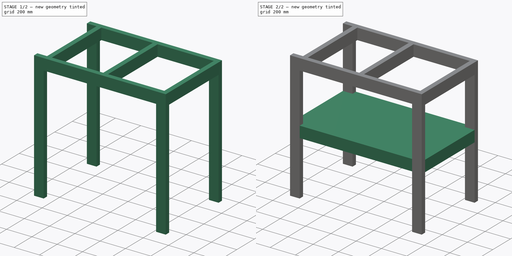
[diagram: build sequence overview — one tinted view per stage of 2, left to right]
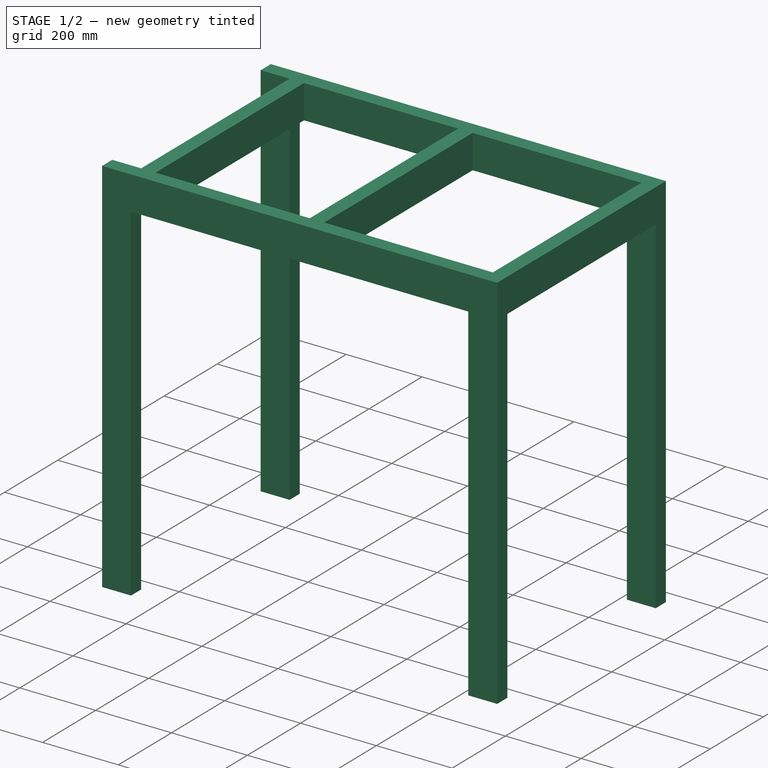
[diagram: stage 1 of 2 — iso view after this stage's code; geometry added in this stage tinted green]
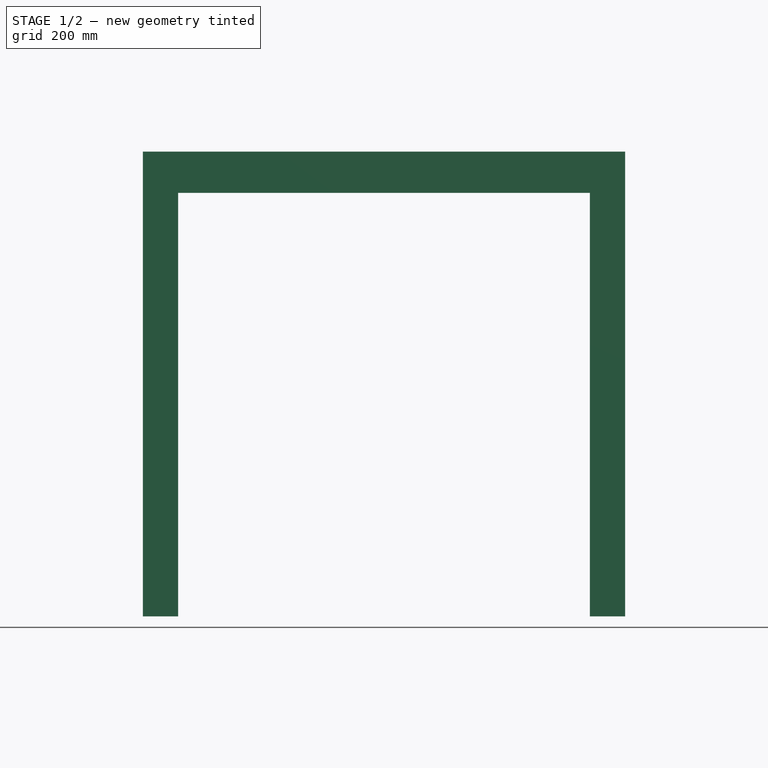
[diagram: stage 1 of 2 — front view after this stage's code; geometry added in this stage tinted green]
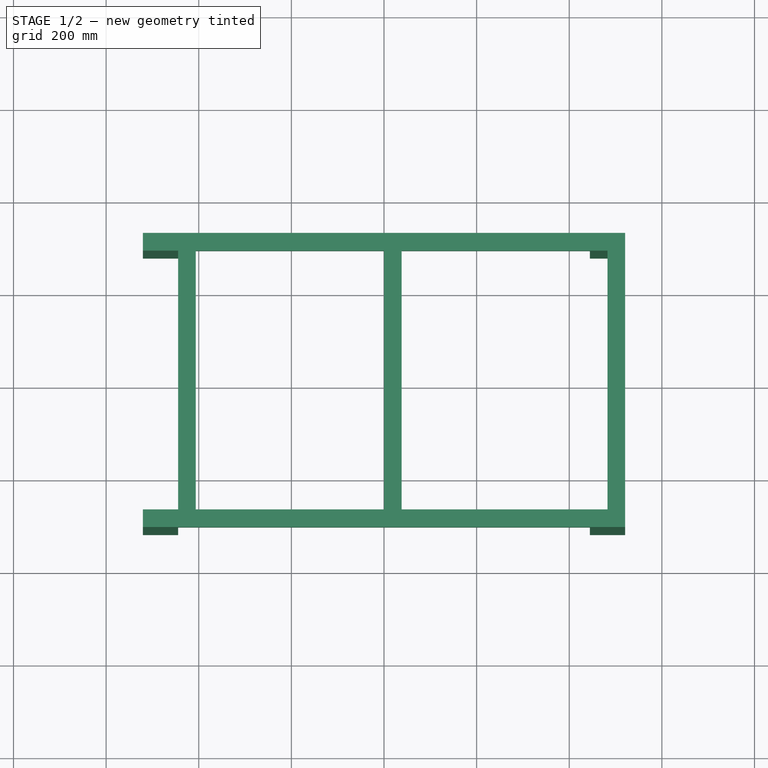
[diagram: stage 1 of 2 — top view after this stage's code; geometry added in this stage tinted green]
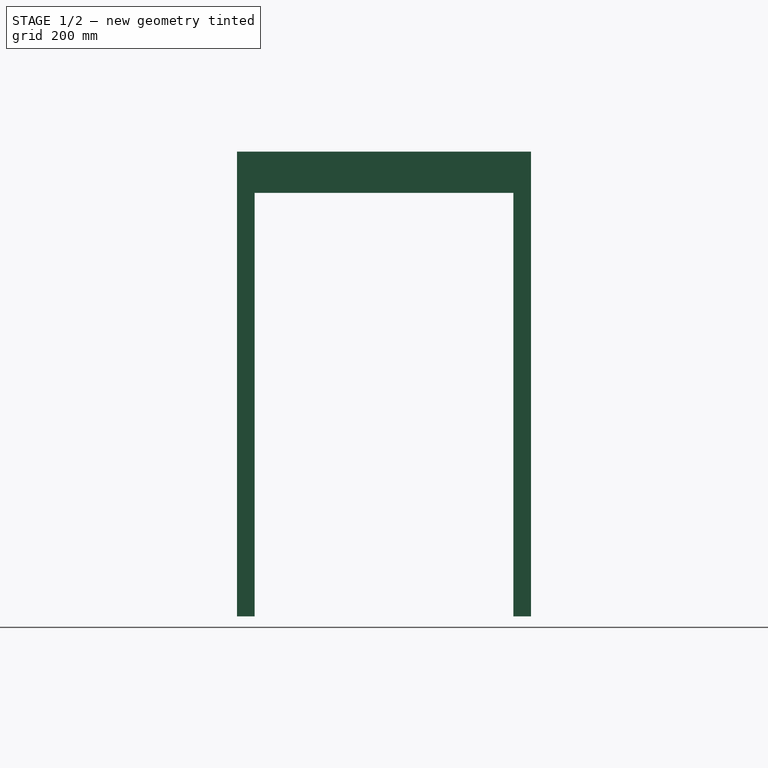
[diagram: stage 1 of 2 — right view after this stage's code; geometry added in this stage tinted green]
FCSTD DOCUMENT  (FreeCAD 1.1R40971 (Git))
Label: base
License: All rights reserved
LicenseURL: http://en.wikipedia.org/wiki/All_rights_reserved
objects: Sketcher::SketchObject×4, PartDesign::Pad×4, App::Point×2, PartDesign::Body×1, App::Part×1
note: 21 computed .brp shape members not serialized (recipe doc carries the construction recipe); baked Part::Feature solids carry a one-line shape summary decoded from their .brp

FEATURE [Sketcher::SketchObject] Sketch  label="base-supportsk"
  ArcFitTolerance = 1e-06
  AttachmentSupport = -> [XY_Plane]
  ExternalTypes = [0]
  FullyConstrained = true
  MakeInternals = false
  MapMode = 5
  sketch-geometry (16):
    g0: LineSegment StartX=-520.7 StartY=317.5 StartZ=0 EndX=-520.7 EndY=279.4 EndZ=0
    g1: LineSegment StartX=-520.7 StartY=279.4 StartZ=0 EndX=-444.5 EndY=279.4 EndZ=0
    g2: LineSegment StartX=520.7 StartY=317.5 StartZ=0 EndX=-520.7 EndY=317.5 EndZ=0
    g3: LineSegment StartX=-520.7 StartY=-317.5 StartZ=0 EndX=-520.7 EndY=-279.4 EndZ=0
    g4: LineSegment StartX=-520.7 StartY=-279.4 StartZ=0 EndX=-444.5 EndY=-279.4 EndZ=0
    g5: LineSegment StartX=520.7 StartY=317.5 StartZ=0 EndX=520.7 EndY=-317.5 EndZ=0
    g6: LineSegment StartX=520.7 StartY=-317.5 StartZ=0 EndX=-520.7 EndY=-317.5 EndZ=0
    g7: LineSegment StartX=-444.5 StartY=279.4 StartZ=0 EndX=-444.5 EndY=-279.4 EndZ=0
    g8: LineSegment StartX=-406.4 StartY=-279.4 StartZ=0 EndX=-406.4 EndY=279.4 EndZ=0
    g9: LineSegment StartX=482.6 StartY=279.4 StartZ=0 EndX=482.6 EndY=-279.4 EndZ=0
    g10: LineSegment StartX=-406.4 StartY=279.4 StartZ=0 EndX=0 EndY=279.4 EndZ=0
    g11: LineSegment StartX=-406.4 StartY=-279.4 StartZ=0 EndX=0 EndY=-279.4 EndZ=0
    g12: LineSegment StartX=2e-15 StartY=279.4 StartZ=0 EndX=2e-15 EndY=-279.4 EndZ=0
    g13: LineSegment StartX=38.1 StartY=279.4 StartZ=0 EndX=38.1 EndY=-279.4 EndZ=0
    g14: LineSegment StartX=38.1 StartY=-279.4 StartZ=0 EndX=482.6 EndY=-279.4 EndZ=0
    g15: LineSegment StartX=38.1 StartY=279.4 StartZ=0 EndX=482.6 EndY=279.4 EndZ=0
  constraints (47):
    c: Coincident(g0,g1)
    c: Coincident(g2,g0)
    c: Vertical(g0)
    c: Horizontal(g1)
    c: Horizontal(g2)
    c: Coincident(g3,g4)
    c: Coincident(g5,g6)
    c: Coincident(g6,g3)
    c: Vertical(g3)
    c: Vertical(g5)
    c: Horizontal(g4)
    c: Horizontal(g6)
    c: Vertical(g7)
    c: Vertical(g8)
    c: Vertical(g9)
    c: DistanceX(g4,g5) = 1041.4
    c: DistanceY(g3,g0) = 635
    c: Symmetric(g5,g0,g-1)
    c: DistanceX(g0,g7) = 76.2
    c: DistanceY(g8,g8) = 558.8
    c: PointOnObject(g10,g8)
    c: Coincident(g14,g9)
    c: Coincident(g9,g15)
    c: Coincident(g8,g11)
    c: PointOnObject(g8,g1)
    c: PointOnObject(g8,g4)
    c: Coincident(g5,g2)
    c: Coincident(g7,g4)
    c: Coincident(g1,g7)
    c: Equal(g0,g3)
    c: DistanceY(g0,g0) = 38.1
    c: DistanceX(g1,g8) = 38.1
    c: DistanceX(g9,g2) = 38.1
    c: Vertical(g3,g0)
    c: Vertical(g12)
    c: Symmetric(g10,g15,g13)
    c: Symmetric(g11,g14,g13)
    c: Horizontal(g11)
    c: Horizontal(g14)
    c: Coincident(g12,g11)
    c: Coincident(g14,g13)
    c: PointOnObject(g8,g10)
    c: Horizontal(g10)
    c: Horizontal(g15)
    c: Coincident(g12,g10)
    c: Coincident(g15,g13)
    c: DistanceX(g10,g13) = 38.1
FEATURE [PartDesign::Pad] Pad  label="top"
  Direction = (0,0,1)
  Length = 88.9
  Length2 = 10
  Profile = -> Sketch
  ReferenceAxis = -> Sketch [N_Axis]
  Suppressed = false
  Type = 0
FEATURE [App::Point] Origin002  label="Origin"
  Role = Origin
FEATURE [App::Point] Origin003  label="Origin"
  Role = Origin
FEATURE [Sketcher::SketchObject] Sketch001  label="shelf-support-sk"
  ArcFitTolerance = 1e-06
  ExternalTypes = [0,0,0,0]
  FullyConstrained = true
  MakeInternals = false
  Placement = pos=(0,0,-406.4) rot=(0,0,1;0rad)
  sketch-geometry (20):
    g0: LineSegment StartX=-444.5 StartY=279.4 StartZ=0 EndX=-19.05 EndY=279.4 EndZ=0
    g1: LineSegment StartX=444.5 StartY=279.4 StartZ=0 EndX=444.5 EndY=317.5 EndZ=0
    g2: LineSegment StartX=444.5 StartY=317.5 StartZ=0 EndX=-444.5 EndY=317.5 EndZ=0
    g3: LineSegment StartX=-444.5 StartY=317.5 StartZ=0 EndX=-444.5 EndY=279.4 EndZ=0
    g4: LineSegment StartX=-444.5 StartY=-279.4 StartZ=0 EndX=-444.5 EndY=-317.5 EndZ=0
    g5: LineSegment StartX=-444.5 StartY=-317.5 StartZ=0 EndX=444.5 EndY=-317.5 EndZ=0
    g6: LineSegment StartX=444.5 StartY=-317.5 StartZ=0 EndX=444.5 EndY=-279.4 EndZ=0
    g7: LineSegment StartX=444.5 StartY=-279.4 StartZ=0 EndX=19.05 EndY=-279.4 EndZ=0
    g8: LineSegment StartX=-19.05 StartY=279.4 StartZ=0 EndX=-19.05 EndY=-279.4 EndZ=0
    g9: LineSegment StartX=19.05 StartY=-279.4 StartZ=0 EndX=19.05 EndY=279.4 EndZ=0
    g10: LineSegment StartX=19.05 StartY=279.4 StartZ=0 EndX=444.5 EndY=279.4 EndZ=0
    g11: LineSegment StartX=-19.05 StartY=-279.4 StartZ=0 EndX=-444.5 EndY=-279.4 EndZ=0
    g12: LineSegment StartX=-482.6 StartY=279.4 StartZ=0 EndX=-520.7 EndY=279.4 EndZ=0
    g13: LineSegment StartX=-520.7 StartY=279.4 StartZ=0 EndX=-520.7 EndY=-279.4 EndZ=0
    g14: LineSegment StartX=-520.7 StartY=-279.4 StartZ=0 EndX=-482.6 EndY=-279.4 EndZ=0
    g15: LineSegment StartX=-482.6 StartY=-279.4 StartZ=0 EndX=-482.6 EndY=279.4 EndZ=0
    g16: LineSegment StartX=482.6 StartY=279.4 StartZ=0 EndX=482.6 EndY=-279.4 EndZ=0
    g17: LineSegment StartX=482.6 StartY=-279.4 StartZ=0 EndX=520.7 EndY=-279.4 EndZ=0
    g18: LineSegment StartX=520.7 StartY=-279.4 StartZ=0 EndX=520.7 EndY=279.4 EndZ=0
    g19: LineSegment StartX=520.7 StartY=279.4 StartZ=0 EndX=482.6 EndY=279.4 EndZ=0
  constraints (58):
    c: Coincident(g10,g1)
    c: Coincident(g1,g2)
    c: Coincident(g2,g3)
    c: Coincident(g3,g0)
    c: Vertical(g1)
    c: Vertical(g3)
    c: DistanceY(g1,g1) = 38.1
    c: Coincident(g4,g5)
    c: Coincident(g5,g6)
    c: Coincident(g6,g7)
    c: Coincident(g11,g4)
    c: Vertical(g4)
    c: Vertical(g6)
    c: Horizontal(g5)
    c: Vertical(g8)
    c: Symmetric(g9,g8,g-2)
    c: Horizontal(g9,g10)
    c: Horizontal(g9,g6)
    c: DistanceX(g8,g9) = 38.1
    c: Equal(g1,g6)
    c: Symmetric(g9,g9,g-1)
    c: Symmetric(g2,g1,g-2)
    c: PointOnObject(g4,g3)
    c: PointOnObject(g6,g1)
    c: DistanceY(g4,g2) = 635
    c: Horizontal(g0)
    c: Coincident(g0,g8)
    c: Coincident(g10,g9)
    c: Horizontal(g11)
    c: Coincident(g7,g9)
    c: Coincident(g11,g8)
    c: Equal(g4,g1)
    c: Coincident(g12,g13)
    c: Coincident(g13,g14)
    c: Coincident(g14,g15)
    c: Coincident(g15,g12)
    c: Horizontal(g12)
    c: Horizontal(g14)
    c: Vertical(g13)
    c: Vertical(g15)
    c: Coincident(g16,g17)
    c: Coincident(g17,g18)
    c: Coincident(g18,g19)
    c: Coincident(g19,g16)
    c: Vertical(g16)
    c: Vertical(g18)
    c: Horizontal(g17)
    c: Horizontal(g19)
    c: Equal(g1,g19)
    c: Equal(g19,g12)
    c: PointOnObject(g12,g0)
    c: PointOnObject(g16,g7)
    c: PointOnObject(g14,g11)
    c: DistanceX(g12,g2) = 76.2
    c: DistanceX(g12,g18) = 1041.4
    c: DistanceX(g5,g5) = 889
    c: DistanceY(g15,g15) = 558.8
    c: Symmetric(g12,g18,g-2)
FEATURE [Sketcher::SketchObject] Sketch002  label="sklegs"
  ArcFitTolerance = 1e-06
  AttachmentSupport = -> [XY_Plane]
  ExternalGeometry = -> [Pad]
  ExternalTypes = [0,0,0,0,0]
  FullyConstrained = true
  MakeInternals = false
  MapMode = 5
  sketch-geometry (16):
    g0: LineSegment StartX=-520.7 StartY=317.5 StartZ=0 EndX=-520.7 EndY=279.4 EndZ=0
    g1: LineSegment StartX=-520.7 StartY=279.4 StartZ=0 EndX=-444.5 EndY=279.4 EndZ=0
    g2: LineSegment StartX=-444.5 StartY=279.4 StartZ=0 EndX=-444.5 EndY=317.5 EndZ=0
    g3: LineSegment StartX=-444.5 StartY=317.5 StartZ=0 EndX=-520.7 EndY=317.5 EndZ=0
    g4: LineSegment StartX=444.5 StartY=317.5 StartZ=0 EndX=444.5 EndY=279.4 EndZ=0
    g5: LineSegment StartX=444.5 StartY=279.4 StartZ=0 EndX=520.7 EndY=279.4 EndZ=0
    g6: LineSegment StartX=520.7 StartY=279.4 StartZ=0 EndX=520.7 EndY=317.5 EndZ=0
    g7: LineSegment StartX=520.7 StartY=317.5 StartZ=0 EndX=444.5 EndY=317.5 EndZ=0
    g8: LineSegment StartX=520.7 StartY=-279.4 StartZ=0 EndX=444.5 EndY=-279.4 EndZ=0
    g9: LineSegment StartX=444.5 StartY=-279.4 StartZ=0 EndX=444.5 EndY=-317.5 EndZ=0
    g10: LineSegment StartX=444.5 StartY=-317.5 StartZ=0 EndX=520.7 EndY=-317.5 EndZ=0
    g11: LineSegment StartX=520.7 StartY=-317.5 StartZ=0 EndX=520.7 EndY=-279.4 EndZ=0
    g12: LineSegment StartX=-444.5 StartY=-279.4 StartZ=0 EndX=-520.7 EndY=-279.4 EndZ=0
    g13: LineSegment StartX=-520.7 StartY=-279.4 StartZ=0 EndX=-520.7 EndY=-317.5 EndZ=0
    g14: LineSegment StartX=-520.7 StartY=-317.5 StartZ=0 EndX=-444.5 EndY=-317.5 EndZ=0
    g15: LineSegment StartX=-444.5 StartY=-317.5 StartZ=0 EndX=-444.5 EndY=-279.4 EndZ=0
  constraints (43):
    c: Coincident(g0,g1)
    c: Coincident(g1,g2)
    c: Coincident(g2,g3)
    c: Coincident(g3,g0)
    c: Vertical(g2)
    c: Horizontal(g1)
    c: Horizontal(g3)
    c: Coincident(g4,g5)
    c: Coincident(g5,g6)
    c: Coincident(g6,g7)
    c: Coincident(g7,g4)
    c: Vertical(g4)
    c: Vertical(g6)
    c: Horizontal(g5)
    c: Horizontal(g7)
    c: Coincident(g8,g9)
    c: Coincident(g9,g10)
    c: Coincident(g10,g11)
    c: Coincident(g11,g8)
    c: Horizontal(g8)
    c: Horizontal(g10)
    c: Vertical(g9)
    c: Vertical(g11)
    c: Coincident(g12,g13)
    c: Coincident(g13,g14)
    c: Coincident(g14,g15)
    c: Coincident(g15,g12)
    c: Horizontal(g12)
    c: Horizontal(g14)
    c: Vertical(g13)
    c: Vertical(g15)
    c: Coincident(g0,g-3)
    c: Coincident(g-5,g0)
    c: Horizontal(g5,g0)
    c: Coincident(g13,g-6)
    c: Coincident(g10,g-7)
    c: Vertical(g4,g8)
    c: Vertical(g12,g1)
    c: Coincident(g6,g-4)
    c: Equal(g5,g1)
    c: Equal(g15,g9)
    c: Equal(g9,g0)
    c: DistanceX(g0,g1) = 76.2
FEATURE [PartDesign::Pad] Pad003
  BaseFeature = -> Pad
  Direction = (0,0,1)
  Length = 914.4
  Length2 = 10
  Profile = -> Sketch002
  ReferenceAxis = -> Sketch002 [N_Axis]
  Reversed = true
  Suppressed = false
  Type = 0
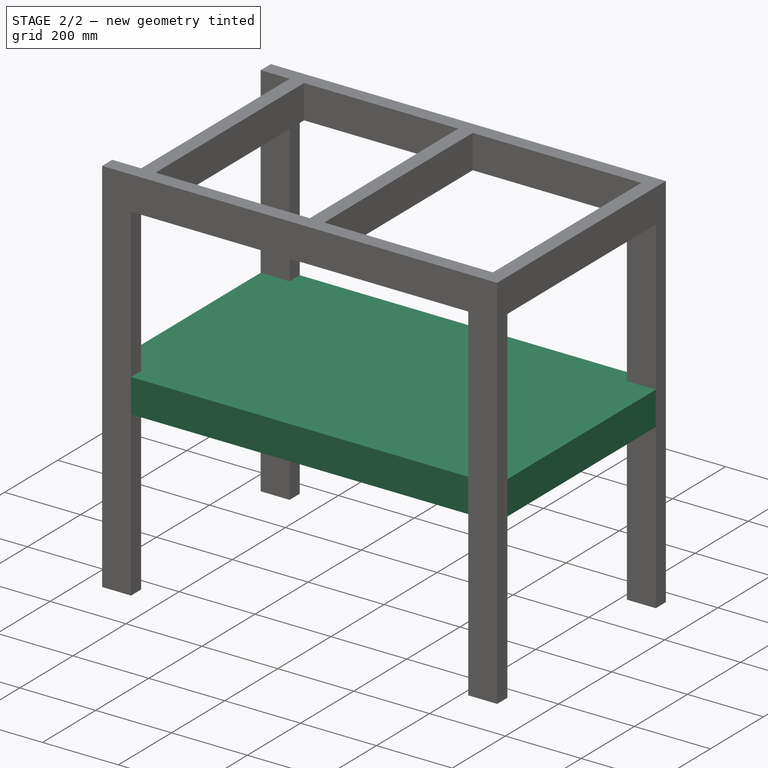
[diagram: stage 2 of 2 — iso view after this stage's code; geometry added in this stage tinted green]
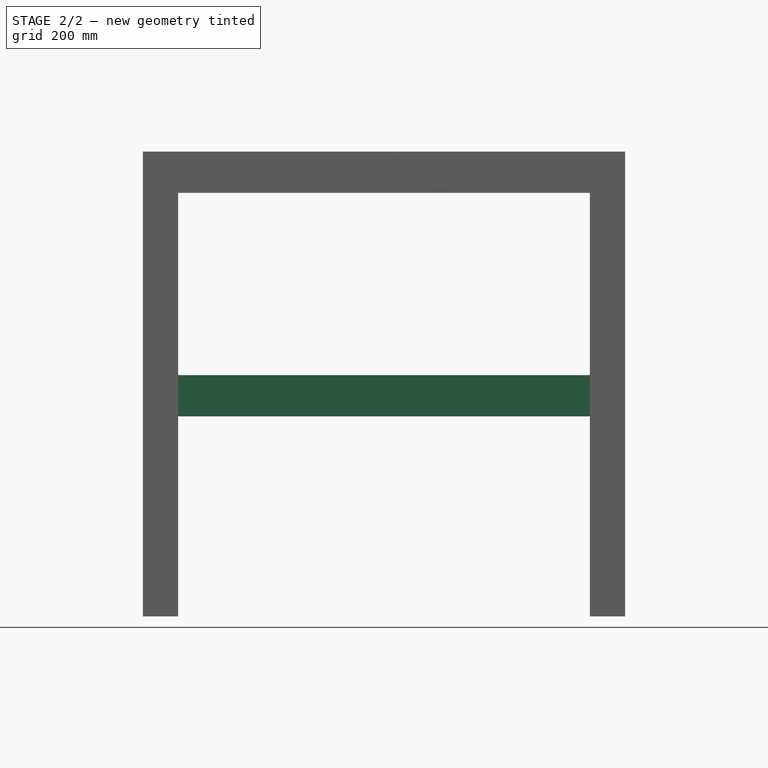
[diagram: stage 2 of 2 — front view after this stage's code; geometry added in this stage tinted green]
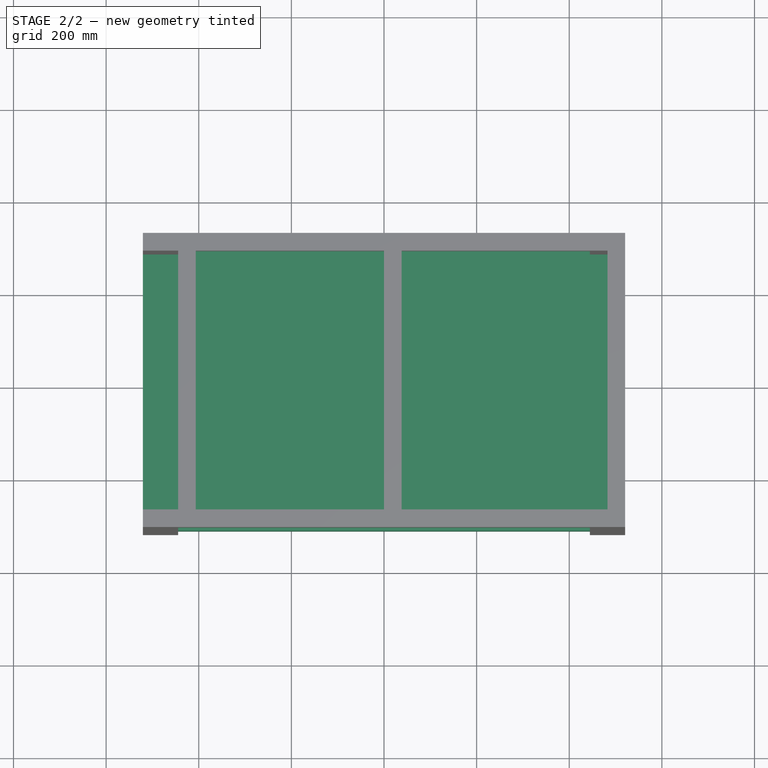
[diagram: stage 2 of 2 — top view after this stage's code; geometry added in this stage tinted green]
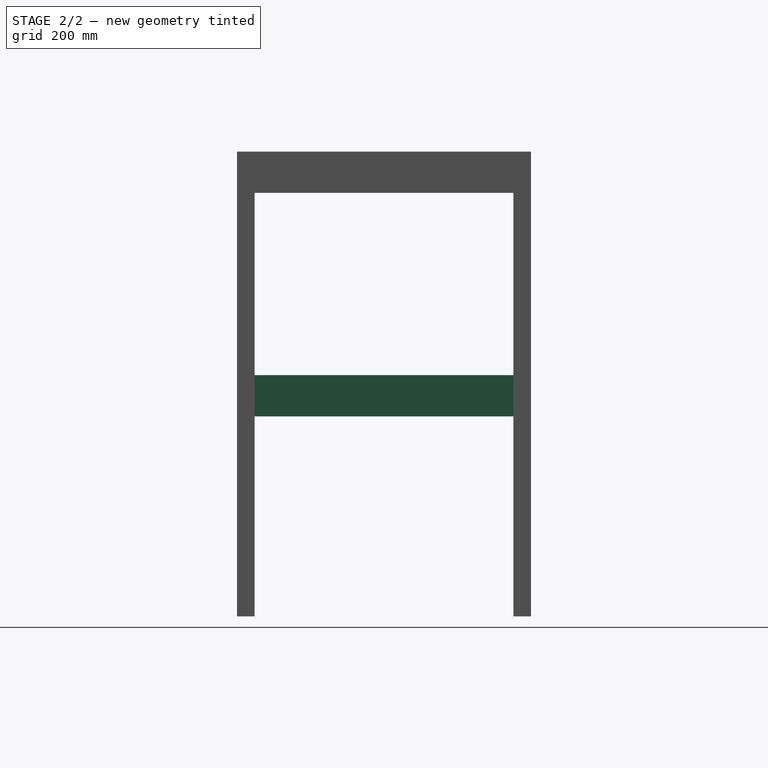
[diagram: stage 2 of 2 — right view after this stage's code; geometry added in this stage tinted green]
FEATURE [PartDesign::Pad] Pad004
  BaseFeature = -> Pad003
  Direction = (0,0,1)
  Length = 76.2
  Length2 = 10
  Profile = -> Sketch001
  ReferenceAxis = -> Sketch001 [N_Axis]
  Reversed = true
  Suppressed = false
  Type = 0
FEATURE [Sketcher::SketchObject] Sketch003  label="skshelf"
  ArcFitTolerance = 1e-06
  ExternalTypes = [0,0]
  FullyConstrained = true
  MakeInternals = false
  MapMode = 5
  Placement = pos=(0,0,-406.4) rot=(0,0,1;0rad)
  sketch-geometry (4):
    g0: LineSegment StartX=-520.7 StartY=317.5 StartZ=0 EndX=-520.7 EndY=-317.5 EndZ=0
    g1: LineSegment StartX=-520.7 StartY=-317.5 StartZ=0 EndX=520.7 EndY=-317.5 EndZ=0
    g2: LineSegment StartX=520.7 StartY=-317.5 StartZ=0 EndX=520.7 EndY=317.5 EndZ=0
    g3: LineSegment StartX=520.7 StartY=317.5 StartZ=0 EndX=-520.7 EndY=317.5 EndZ=0
  constraints (11):
    c: Coincident(g0,g1)
    c: Coincident(g1,g2)
    c: Coincident(g2,g3)
    c: Coincident(g3,g0)
    c: Vertical(g0)
    c: Vertical(g2)
    c: Horizontal(g1)
    c: Horizontal(g3)
    c: DistanceX(g3,g3) = 1041.4
    c: DistanceY(g2,g2) = 635
    c: Symmetric(g2,g0,g-1)
FEATURE [PartDesign::Pad] Pad005
  BaseFeature = -> Pad004
  Direction = (0,0,1)
  Length = 12.7
  Length2 = 10
  Profile = -> Sketch003
  ReferenceAxis = -> Sketch003 [N_Axis]
  Suppressed = false
  Type = 0
FEATURE [PartDesign::Body] Body  label="base"
  AllowCompound = false
  Group = -> [Pad,Sketch,Sketch002,Pad003,Sketch001,Pad004,Sketch003,Pad005]
  Origin = -> Origin
  Tip = -> Pad005
FEATURE [App::Part] Part
  Group = -> [Body]
  Origin = -> Origin001
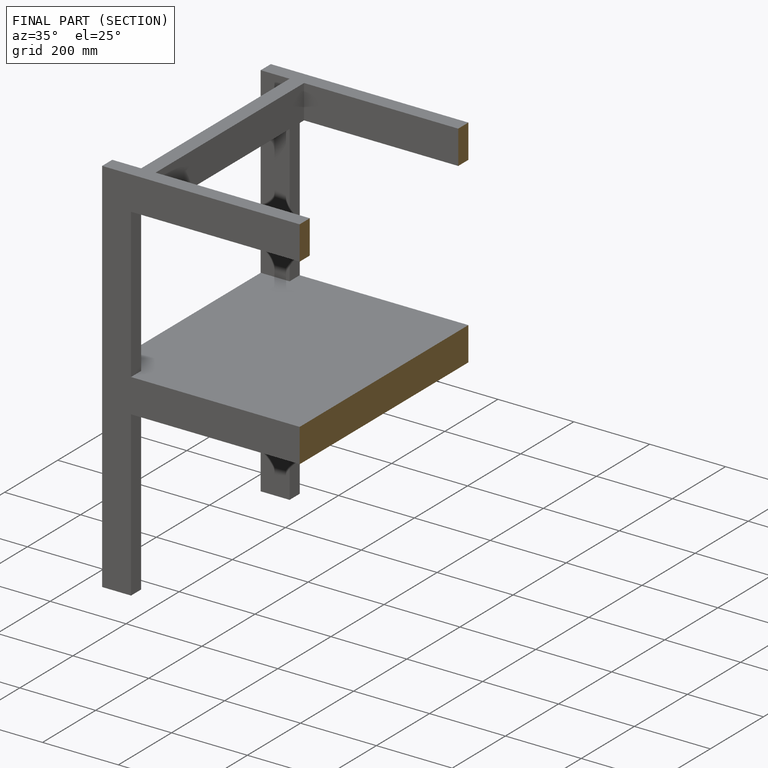
[diagram: finished part — half-section view (interior)]
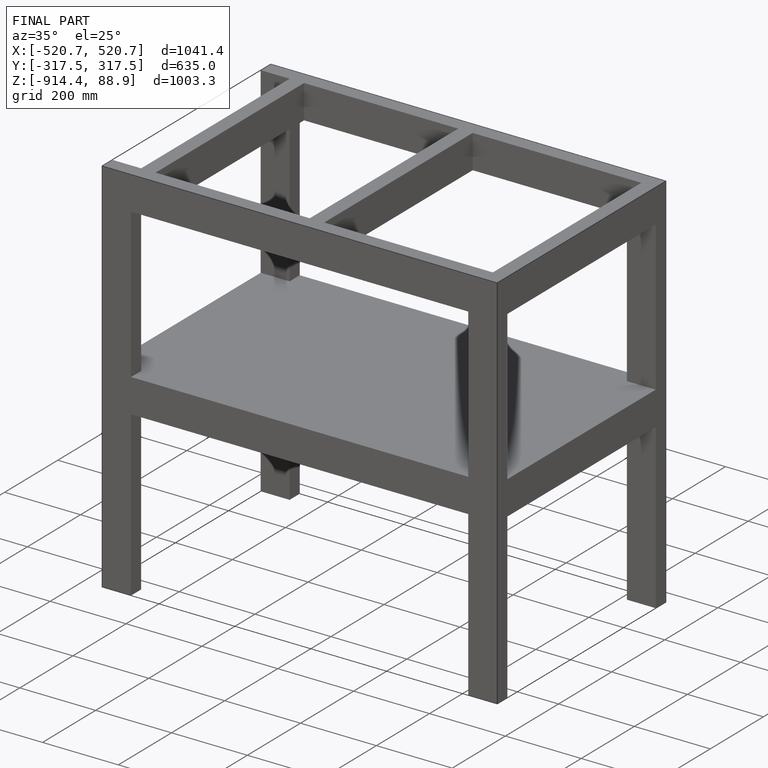
[diagram: finished part — iso view with bounding-box wireframe]
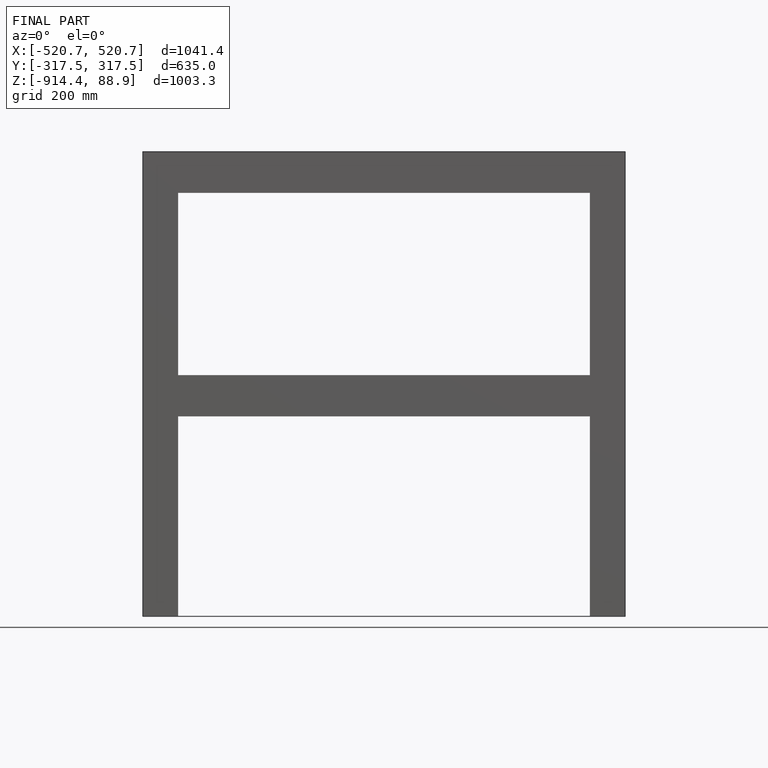
[diagram: finished part — front view with bounding-box wireframe]
